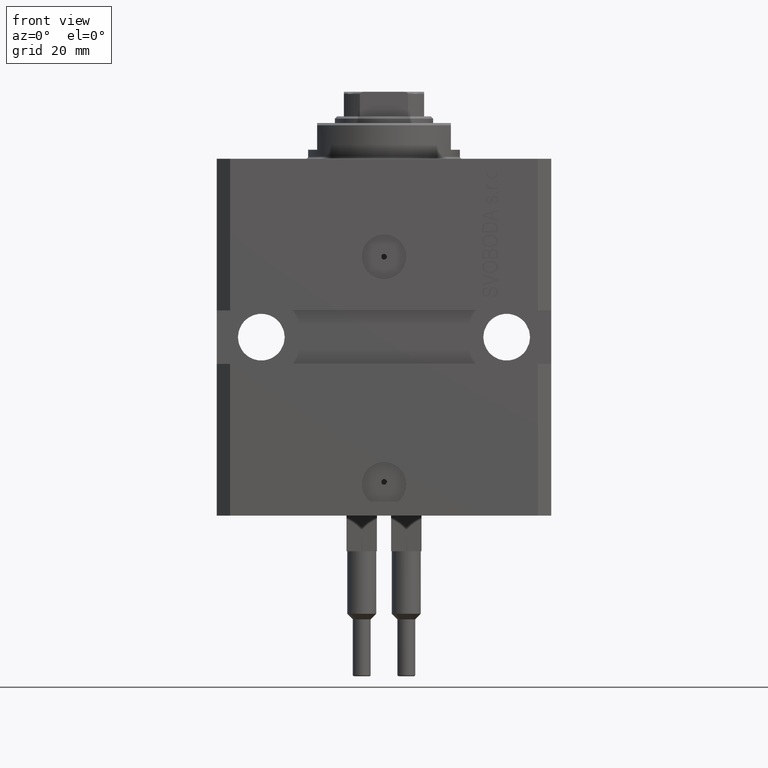
[diagram: clean part render]
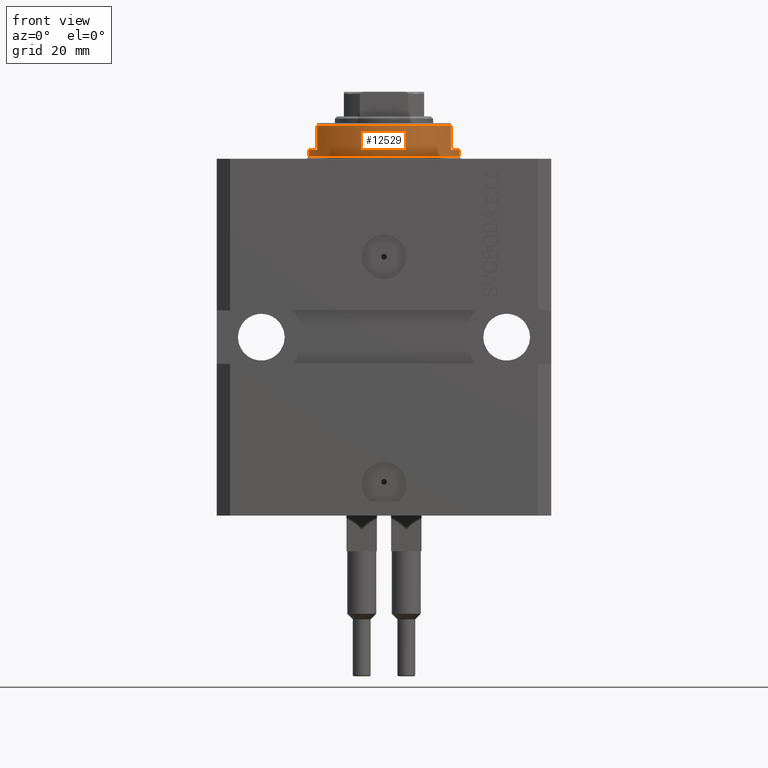
[diagram: same view with one face highlighted and labeled with its STEP entity id]
A machine part, front view. The second image highlights one B-rep face of the part: STEP entity #12529.
In plain terms, the highlighted cylindrical surface (partial cylindrical patch) has radius 17 mm, axis along (0, 0, -1).
Its self-contained STEP definition (entity closure, byte-faithful):
#4 = CARTESIAN_POINT ( 'NONE',  ( 0.000000000000000000, 0.000000000000000000, -8.000000000000000000 ) ) ;
#712 = ORIENTED_EDGE ( 'NONE', *, *, #3544, .T. ) ;
#715 = CARTESIAN_POINT ( 'NONE',  ( -15.00000000000000000, -8.000000000000001776, -8.000000000000000000 ) ) ;
#896 = ORIENTED_EDGE ( 'NONE', *, *, #42309, .F. ) ;
#2672 = DIRECTION ( 'NONE',  ( 0.000000000000000000, 0.000000000000000000, -1.000000000000000000 ) ) ;
#3544 = EDGE_CURVE ( 'NONE', #9817, #47609, #37729, .T. ) ;
#5321 = VECTOR ( 'NONE', #14845, 1000.000000000000000 ) ;
#5336 = ORIENTED_EDGE ( 'NONE', *, *, #13239, .F. ) ;
#6843 = DIRECTION ( 'NONE',  ( -0.000000000000000000, -0.000000000000000000, 1.000000000000000000 ) ) ;
#8496 = CARTESIAN_POINT ( 'NONE',  ( 0.000000000000000000, 0.000000000000000000, -7.500000000000007105 ) ) ;
#9690 = EDGE_CURVE ( 'NONE', #37825, #18193, #31518, .T. ) ;
#9817 = VERTEX_POINT ( 'NONE', #30487 ) ;
#11211 = LINE ( 'NONE', #14394, #42902 ) ;
#11984 = VECTOR ( 'NONE', #36831, 1000.000000000000000 ) ;
#12529 = ADVANCED_FACE ( 'NONE', ( #25597 ), #40198, .T. ) ;
#13239 = EDGE_CURVE ( 'NONE', #9817, #24719, #45658, .T. ) ;
#13520 = ORIENTED_EDGE ( 'NONE', *, *, #9690, .T. ) ;
#14036 = VERTEX_POINT ( 'NONE', #34125 ) ;
#14132 = LINE ( 'NONE', #18018, #5321 ) ;
#14394 = CARTESIAN_POINT ( 'NONE',  ( 17.00000000000000000, 0.000000000000000000, -8.000000000000000000 ) ) ;
#14667 = EDGE_LOOP ( 'NONE', ( #40606, #5336, #712, #21897, #34530, #896, #35521, #13520 ) ) ;
#14845 = DIRECTION ( 'NONE',  ( -0.000000000000000000, -0.000000000000000000, 1.000000000000000000 ) ) ;
#14871 = DIRECTION ( 'NONE',  ( 1.000000000000000000, 0.000000000000000000, 0.000000000000000000 ) ) ;
#16435 = DIRECTION ( 'NONE',  ( -0.000000000000000000, -0.000000000000000000, -1.000000000000000000 ) ) ;
#18018 = CARTESIAN_POINT ( 'NONE',  ( -17.00000000000000000, 2.081899558550500280E-15, -8.000000000000000000 ) ) ;
#18193 = VERTEX_POINT ( 'NONE', #23752 ) ;
#19890 = EDGE_CURVE ( 'NONE', #47609, #14036, #31758, .T. ) ;
#20629 = EDGE_CURVE ( 'NONE', #24719, #18193, #14132, .T. ) ;
#21897 = ORIENTED_EDGE ( 'NONE', *, *, #19890, .T. ) ;
#21944 = DIRECTION ( 'NONE',  ( 0.000000000000000000, 0.000000000000000000, -1.000000000000000000 ) ) ;
#22168 = DIRECTION ( 'NONE',  ( -0.000000000000000000, -0.000000000000000000, 1.000000000000000000 ) ) ;
#22664 = CARTESIAN_POINT ( 'NONE',  ( 0.000000000000000000, 0.000000000000000000, -2.000000000000000000 ) ) ;
#22859 = VECTOR ( 'NONE', #30425, 1000.000000000000000 ) ;
#23062 = AXIS2_PLACEMENT_3D ( 'NONE', #4, #6843, #14871 ) ;
#23752 = CARTESIAN_POINT ( 'NONE',  ( -17.00000000000000000, 2.081899558550500280E-15, -0.5000000000000004441 ) ) ;
#24719 = VERTEX_POINT ( 'NONE', #45396 ) ;
#24929 = LINE ( 'NONE', #47334, #11984 ) ;
#25597 = FACE_OUTER_BOUND ( 'NONE', #14667, .T. ) ;
#26448 = VERTEX_POINT ( 'NONE', #33704 ) ;
#30340 = EDGE_CURVE ( 'NONE', #26448, #37825, #11211, .T. ) ;
#30425 = DIRECTION ( 'NONE',  ( 0.000000000000000000, 0.000000000000000000, -1.000000000000000000 ) ) ;
#30487 = CARTESIAN_POINT ( 'NONE',  ( -14.99999999999999645, -8.000000000000003553, -2.000000000000000000 ) ) ;
#30547 = VERTEX_POINT ( 'NONE', #46984 ) ;
#31518 = CIRCLE ( 'NONE', #43195, 17.00000000000000000 ) ;
#31560 = CIRCLE ( 'NONE', #39336, 17.00000000000000000 ) ;
#31758 = CIRCLE ( 'NONE', #41047, 17.00000000000000000 ) ;
#32383 = DIRECTION ( 'NONE',  ( -1.000000000000000000, 0.000000000000000000, 0.000000000000000000 ) ) ;
#33207 = AXIS2_PLACEMENT_3D ( 'NONE', #44298, #2672, #32383 ) ;
#33704 = CARTESIAN_POINT ( 'NONE',  ( 17.00000000000000000, 0.000000000000000000, -2.000000000000000000 ) ) ;
#34125 = CARTESIAN_POINT ( 'NONE',  ( 15.00000000000000000, -8.000000000000001776, -7.500000000000007105 ) ) ;
#34530 = ORIENTED_EDGE ( 'NONE', *, *, #39068, .F. ) ;
#35179 = CARTESIAN_POINT ( 'NONE',  ( 0.000000000000000000, 0.000000000000000000, -0.5000000000000004441 ) ) ;
#35521 = ORIENTED_EDGE ( 'NONE', *, *, #30340, .T. ) ;
#36831 = DIRECTION ( 'NONE',  ( 0.000000000000000000, 0.000000000000000000, -1.000000000000000000 ) ) ;
#37470 = DIRECTION ( 'NONE',  ( 0.000000000000000000, 0.000000000000000000, 1.000000000000000000 ) ) ;
#37729 = LINE ( 'NONE', #715, #22859 ) ;
#37825 = VERTEX_POINT ( 'NONE', #42266 ) ;
#39068 = EDGE_CURVE ( 'NONE', #30547, #14036, #24929, .T. ) ;
#39070 = DIRECTION ( 'NONE',  ( 1.000000000000000000, 0.000000000000000000, 0.000000000000000000 ) ) ;
#39336 = AXIS2_PLACEMENT_3D ( 'NONE', #22664, #21944, #40442 ) ;
#40198 = CYLINDRICAL_SURFACE ( 'NONE', #23062, 17.00000000000000000 ) ;
#40442 = DIRECTION ( 'NONE',  ( -1.000000000000000000, 0.000000000000000000, 0.000000000000000000 ) ) ;
#40606 = ORIENTED_EDGE ( 'NONE', *, *, #20629, .F. ) ;
#40982 = CARTESIAN_POINT ( 'NONE',  ( -15.00000000000000000, -8.000000000000001776, -7.500000000000007105 ) ) ;
#41047 = AXIS2_PLACEMENT_3D ( 'NONE', #8496, #37470, #45269 ) ;
#42266 = CARTESIAN_POINT ( 'NONE',  ( 17.00000000000000000, 0.000000000000000000, -0.5000000000000004441 ) ) ;
#42309 = EDGE_CURVE ( 'NONE', #26448, #30547, #31560, .T. ) ;
#42902 = VECTOR ( 'NONE', #22168, 1000.000000000000000 ) ;
#43195 = AXIS2_PLACEMENT_3D ( 'NONE', #35179, #16435, #39070 ) ;
#44298 = CARTESIAN_POINT ( 'NONE',  ( 0.000000000000000000, 0.000000000000000000, -2.000000000000000000 ) ) ;
#45269 = DIRECTION ( 'NONE',  ( -1.000000000000000000, 0.000000000000000000, 0.000000000000000000 ) ) ;
#45396 = CARTESIAN_POINT ( 'NONE',  ( -17.00000000000000000, 2.081899558550500280E-15, -2.000000000000000000 ) ) ;
#45658 = CIRCLE ( 'NONE', #33207, 17.00000000000000000 ) ;
#46984 = CARTESIAN_POINT ( 'NONE',  ( 14.99999999999999645, -8.000000000000003553, -2.000000000000000000 ) ) ;
#47334 = CARTESIAN_POINT ( 'NONE',  ( 15.00000000000000000, -8.000000000000001776, -8.000000000000000000 ) ) ;
#47609 = VERTEX_POINT ( 'NONE', #40982 ) ;